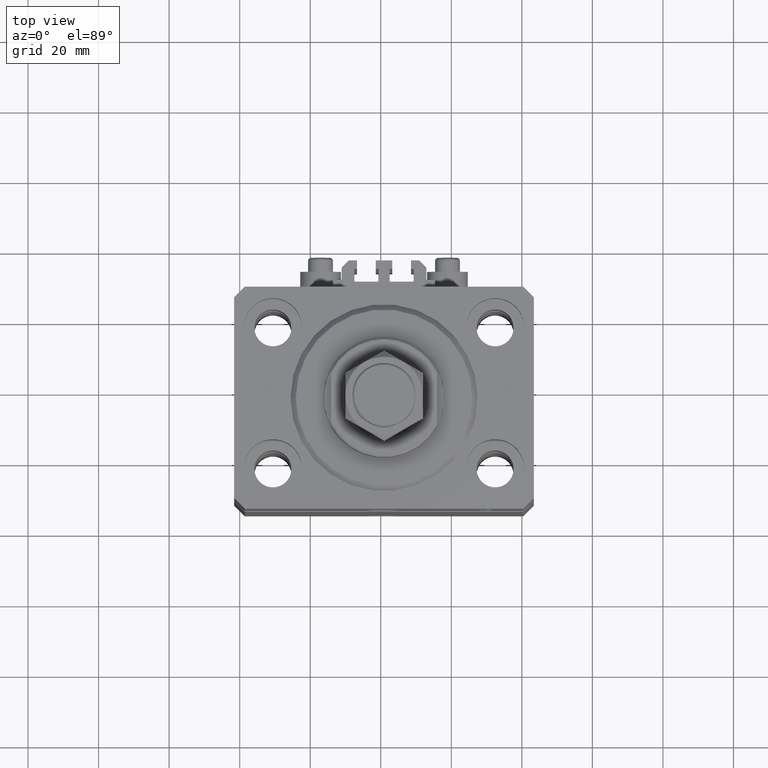
[diagram: clean part render]
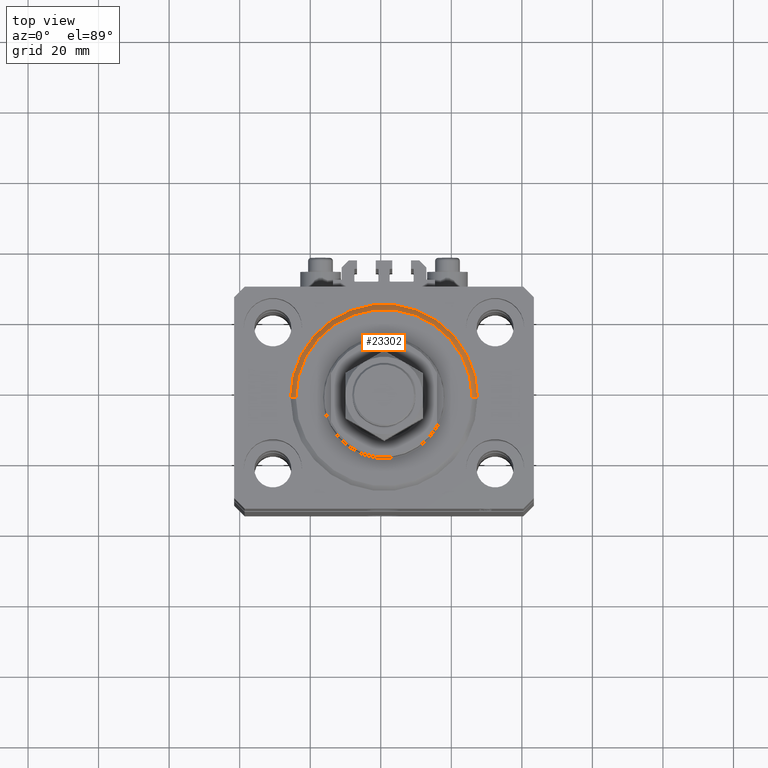
[diagram: same view with one face highlighted and labeled with its STEP entity id]
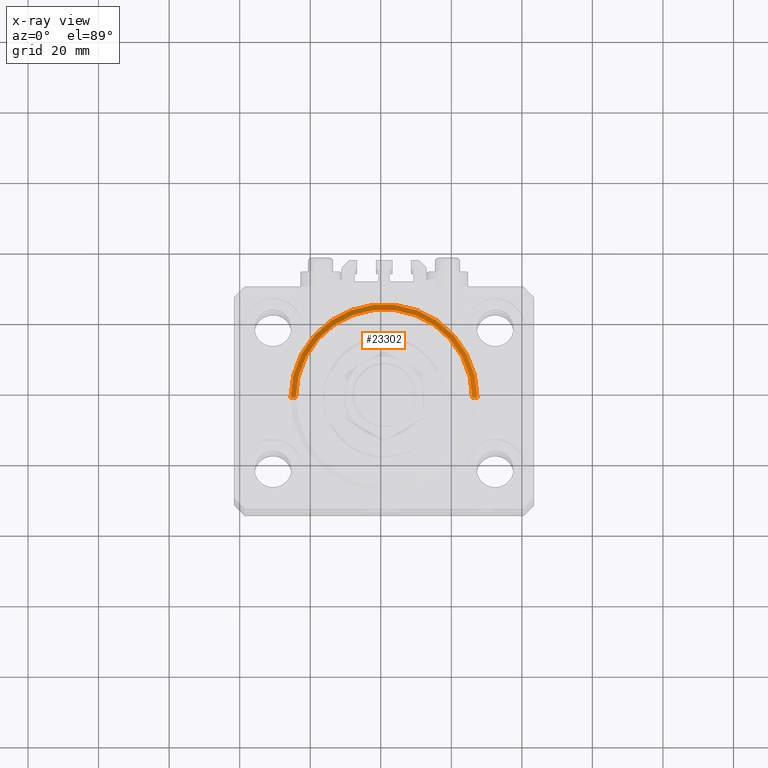
[diagram: x-ray of the same camera — body ghosted, the highlighted face saturated]
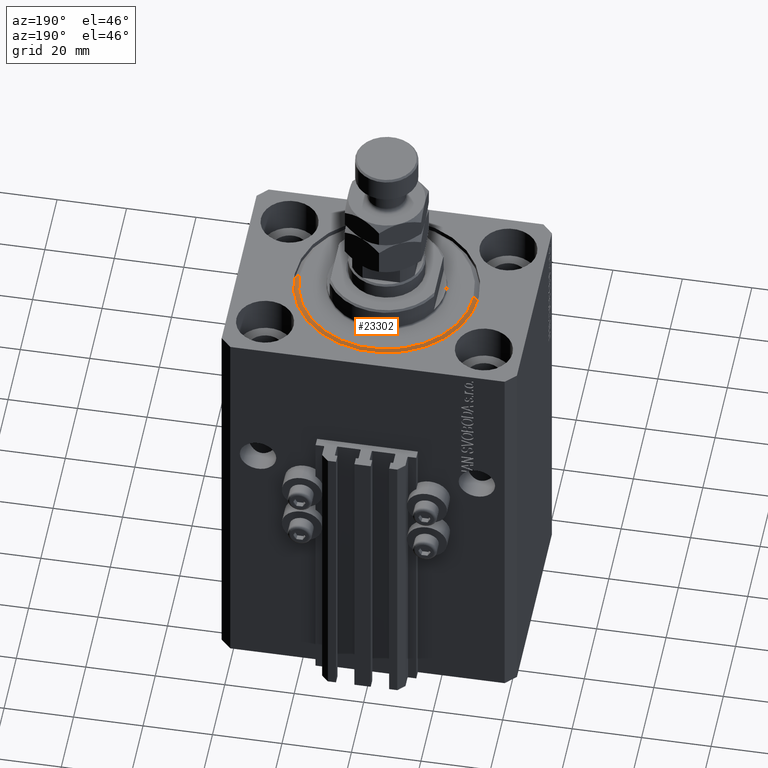
[diagram: same view with one face highlighted and labeled with its STEP entity id]
A machine part, top view. The second image highlights one B-rep face of the part: STEP entity #23302.
The next image is the same camera in x-ray: the body ghosted, the highlighted face saturated — about 0% of this face is hidden behind the body in this view.
A second angle (auxiliary view) of the same face is appended — the face is thin or edge-on in the first view.
In plain terms, the highlighted conical surface has half-angle 45 deg.
Its self-contained STEP definition (entity closure, byte-faithful):
#420 = CIRCLE ( 'NONE', #10777, 26.50000000000000355 ) ;
#3815 = ORIENTED_EDGE ( 'NONE', *, *, #10412, .F. ) ;
#6009 = VECTOR ( 'NONE', #29271, 1000.000000000000000 ) ;
#6389 = CARTESIAN_POINT ( 'NONE',  ( -26.50000000000000355, 3.245314017740486554E-15, 1.500000000000046407 ) ) ;
#7183 = VERTEX_POINT ( 'NONE', #31241 ) ;
#8189 = EDGE_CURVE ( 'NONE', #18365, #27941, #13834, .T. ) ;
#8724 = CARTESIAN_POINT ( 'NONE',  ( 26.50000000000000355, 3.245314017740485765E-15, 1.500000000000046407 ) ) ;
#10412 = EDGE_CURVE ( 'NONE', #27941, #27316, #420, .T. ) ;
#10777 = AXIS2_PLACEMENT_3D ( 'NONE', #28429, #31903, #43622 ) ;
#13834 = LINE ( 'NONE', #14333, #6009 ) ;
#14333 = CARTESIAN_POINT ( 'NONE',  ( 26.50000000000000355, 0.000000000000000000, 1.500000000000046407 ) ) ;
#14459 = DIRECTION ( 'NONE',  ( 1.000000000000000000, 0.000000000000000000, 0.000000000000000000 ) ) ;
#15861 = CONICAL_SURFACE ( 'NONE', #30187, 26.50000000000000355, 0.7853981633974506105 ) ;
#18261 = ORIENTED_EDGE ( 'NONE', *, *, #8189, .F. ) ;
#18365 = VERTEX_POINT ( 'NONE', #45506 ) ;
#18933 = CARTESIAN_POINT ( 'NONE',  ( 0.000000000000000000, 0.000000000000000000, 0.000000000000000000 ) ) ;
#21677 = CARTESIAN_POINT ( 'NONE',  ( 0.000000000000000000, 0.000000000000000000, 1.500000000000046407 ) ) ;
#22419 = FACE_OUTER_BOUND ( 'NONE', #46190, .T. ) ;
#23302 = ADVANCED_FACE ( 'NONE', ( #22419 ), #15861, .T. ) ;
#25642 = ORIENTED_EDGE ( 'NONE', *, *, #48549, .F. ) ;
#27316 = VERTEX_POINT ( 'NONE', #43684 ) ;
#27941 = VERTEX_POINT ( 'NONE', #8724 ) ;
#28429 = CARTESIAN_POINT ( 'NONE',  ( 0.000000000000000000, 0.000000000000000000, 1.500000000000046407 ) ) ;
#29271 = DIRECTION ( 'NONE',  ( 0.7071067811865491270, 0.000000000000000000, 0.7071067811865459074 ) ) ;
#30180 = CIRCLE ( 'NONE', #32540, 24.99999999999995026 ) ;
#30187 = AXIS2_PLACEMENT_3D ( 'NONE', #21677, #34113, #40609 ) ;
#31241 = CARTESIAN_POINT ( 'NONE',  ( -24.99999999999995026, 3.153465507804431248E-15, 0.000000000000000000 ) ) ;
#31903 = DIRECTION ( 'NONE',  ( -0.000000000000000000, -0.000000000000000000, 1.000000000000000000 ) ) ;
#32174 = ORIENTED_EDGE ( 'NONE', *, *, #32297, .T. ) ;
#32297 = EDGE_CURVE ( 'NONE', #7183, #27316, #37260, .T. ) ;
#32540 = AXIS2_PLACEMENT_3D ( 'NONE', #18933, #33366, #14459 ) ;
#33366 = DIRECTION ( 'NONE',  ( -0.000000000000000000, -0.000000000000000000, -1.000000000000000000 ) ) ;
#34113 = DIRECTION ( 'NONE',  ( -0.000000000000000000, -0.000000000000000000, 1.000000000000000000 ) ) ;
#37260 = LINE ( 'NONE', #6389, #48789 ) ;
#40609 = DIRECTION ( 'NONE',  ( 1.000000000000000000, 0.000000000000000000, 0.000000000000000000 ) ) ;
#43622 = DIRECTION ( 'NONE',  ( 1.000000000000000000, 0.000000000000000000, 0.000000000000000000 ) ) ;
#43684 = CARTESIAN_POINT ( 'NONE',  ( -26.50000000000000355, 0.000000000000000000, 1.500000000000046407 ) ) ;
#45506 = CARTESIAN_POINT ( 'NONE',  ( 24.99999999999995026, 0.000000000000000000, 0.000000000000000000 ) ) ;
#46190 = EDGE_LOOP ( 'NONE', ( #25642, #32174, #3815, #18261 ) ) ;
#48234 = DIRECTION ( 'NONE',  ( -0.7071067811865491270, 8.659560562354952580E-17, 0.7071067811865459074 ) ) ;
#48549 = EDGE_CURVE ( 'NONE', #7183, #18365, #30180, .T. ) ;
#48789 = VECTOR ( 'NONE', #48234, 1000.000000000000000 ) ;